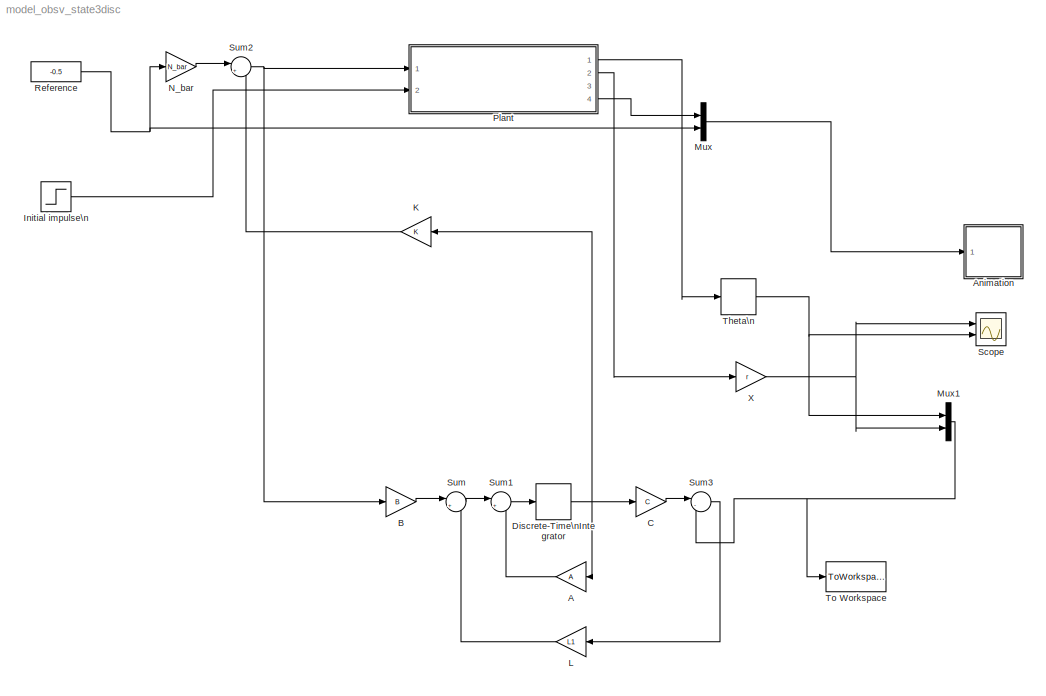
MODEL model_obsv_state3disc
KIND model
BLOCK [Gain] A
  Gain = A
  Multiplication = Matrix(K*u)
  OutDataTypeStr = Inherit: Inherit via internal rule
  ParamDataTypeStr = Inherit: Inherit via internal rule
  SID = 53
  SaturateOnIntegerOverflow = off
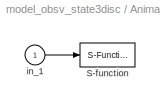
BLOCK [SubSystem] Animation
  Ports = [1]
  RequestExecContextInheritance = off
  SID = 22
  Variant = off
BLOCK [S-Function] Animation/S-function
  DeleteFcn = pendan([],[],[],'DeleteBlock');
  EnableBusSupport = off
  FunctionName = invpend_anim
  Parameters = RefBlock,L,r,Ts
  Ports = [1]
  SFunctionDeploymentMode = off
  SID = 24
BLOCK [Inport] Animation/in_1
  IconDisplay = Port number
  SID = 23
BLOCK [Gain] B
  Gain = B
  Multiplication = Matrix(K*u)
  OutDataTypeStr = Inherit: Inherit via internal rule
  ParamDataTypeStr = Inherit: Inherit via internal rule
  SID = 52
  SaturateOnIntegerOverflow = off
BLOCK [Gain] C
  Gain = C
  Multiplication = Matrix(K*u)
  OutDataTypeStr = Inherit: Inherit via internal rule
  ParamDataTypeStr = Inherit: Inherit via internal rule
  SID = 54
  SaturateOnIntegerOverflow = off
BLOCK [DiscreteIntegrator] Discrete-Time\nIntegrator
  ICPrevOutput = DiscIntNeverNeededParam
  ICPrevScaledInput = DiscIntNeverNeededParam
  InitialConditionSetting = State (most efficient)
  IntegratorMethod = Integration: Trapezoidal
  Ports = [1, 1]
  SID = 87
  SampleTime = 0.00344
BLOCK [Step] Initial impulse\n
  After = 0
  SID = 85
  SampleTime = 0
  Time = 6
BLOCK [Gain] K
  Gain = K
  Multiplication = Matrix(K*u)
  OutDataTypeStr = Inherit: Inherit via internal rule
  ParamDataTypeStr = Inherit: Inherit via internal rule
  SID = 42
  SaturateOnIntegerOverflow = off
BLOCK [Gain] L
  Gain = L1
  Multiplication = Matrix(K*u)
  OutDataTypeStr = Inherit: Inherit via internal rule
  ParamDataTypeStr = Inherit: Inherit via internal rule
  SID = 58
  SaturateOnIntegerOverflow = off
BLOCK [Mux] Mux
  DisplayOption = bar
  Inputs = 2
  Ports = [2, 1]
  SID = 26
BLOCK [Mux] Mux1
  DisplayOption = bar
  Inputs = 2
  Ports = [2, 1]
  SID = 72
BLOCK [Gain] N_bar
  Gain = N_bar
  Multiplication = Matrix(K*u)
  OutDataTypeStr = Inherit: Inherit via internal rule
  ParamDataTypeStr = Inherit: Inherit via internal rule
  SID = 79
  SaturateOnIntegerOverflow = off
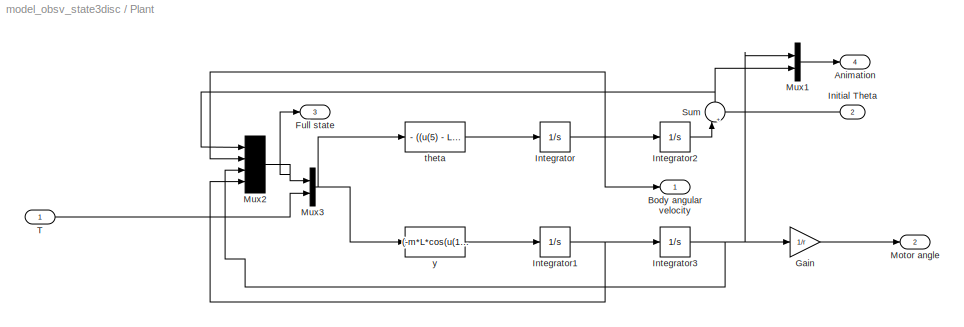
BLOCK [SubSystem] Plant
  Ports = [2, 4]
  RequestExecContextInheritance = off
  SID = 8
  Variant = off
BLOCK [Outport] Plant/Animation
  IconDisplay = Port number
  Port = 4
  SID = 14
BLOCK [Outport] Plant/Body angular velocity
  IconDisplay = Port number
  SID = 11
BLOCK [Outport] Plant/Full state
  IconDisplay = Port number
  Port = 3
  SID = 27
BLOCK [Gain] Plant/Gain
  Gain = 1/r
  OutDataTypeStr = Inherit: Inherit via internal rule
  ParamDataTypeStr = Inherit: Inherit via internal rule
  SID = 12
  SaturateOnIntegerOverflow = off
BLOCK [Inport] Plant/Initial Theta
  IconDisplay = Port number
  Port = 2
  SID = 44
BLOCK [Integrator] Plant/Integrator
  Ports = [1, 1]
  SID = 3
BLOCK [Integrator] Plant/Integrator1
  Ports = [1, 1]
  SID = 4
BLOCK [Integrator] Plant/Integrator2
  Ports = [1, 1]
  SID = 5
BLOCK [Integrator] Plant/Integrator3
  Ports = [1, 1]
  SID = 6
BLOCK [Outport] Plant/Motor angle
  IconDisplay = Port number
  Port = 2
  SID = 13
BLOCK [Mux] Plant/Mux1
  DisplayOption = bar
  Inputs = 2
  Ports = [2, 1]
  SID = 19
BLOCK [Mux] Plant/Mux2
  DisplayOption = bar
  Ports = [4, 1]
  SID = 28
BLOCK [Mux] Plant/Mux3
  DisplayOption = bar
  Inputs = 2
  Ports = [2, 1]
  SID = 29
BLOCK [Sum] Plant/Sum
  IconShape = round
  InputSameDT = off
  Inputs = |++
  OutDataTypeStr = Inherit: Inherit via internal rule
  Ports = [2, 1]
  SID = 16
  SaturateOnIntegerOverflow = off
BLOCK [Inport] Plant/T
  IconDisplay = Port number
  SID = 9
BLOCK [Fcn] Plant/theta
  Expr = - ((u(5) - L*g*m*sin(u(1)))*(J + m*r^2 + mw*r^2))/(L^2*m*(J + m*r^2 + mw*r^2 - m*r^2*cos(u(1))^2)) - (r^2*cos(u(1))*(u(5)/r + L*m*u(2)^2*sin(u(1))))/(L*(J + m*r^2 + mw*r^2 - m*r^2*cos(u(1))^2))
  SID = 1
BLOCK [Fcn] Plant/y
  Expr = (-m*L*cos(u(1))*(m*g*L*sin(u(1)) - u(5)) + m*L^2*(m*L*u(2)^2*sin(u(1))+u(5)/r))/(L^2*(m^2+m*mw+(m*J)/r^2- m^2*(cos(u(1)))^2))
  SID = 2
BLOCK [Constant] Reference
  SID = 25
  Value = -0.5
BLOCK [Scope] Scope
  NumInputPorts = 2
  Ports = [2]
  SID = 77
  ScopeSpecificationString = Simulink.scopes.TimeScopeBlockCfg('CurrentConfiguration', extmgr.ConfigurationSet(extmgr.Configuration('Core','General UI',true),extmgr.Configuration('Core','Source UI',true),extmgr.Configuration('Sources','WiredSimulink',true,'DataLoggingSaveFormat','StructureWithTime','DataLoggingDecimation','1','DataLoggingDecimateData',true),extmgr.Configuration('Visuals','Time Domain',true,'SerializedDisplays...<+2249ch>
BLOCK [Sum] Sum
  IconShape = round
  InputSameDT = off
  Inputs = |++
  OutDataTypeStr = Inherit: Inherit via internal rule
  Ports = [2, 1]
  SID = 55
  SaturateOnIntegerOverflow = off
BLOCK [Sum] Sum1
  IconShape = round
  InputSameDT = off
  Inputs = |++
  OutDataTypeStr = Inherit: Inherit via internal rule
  Ports = [2, 1]
  SID = 56
  SaturateOnIntegerOverflow = off
BLOCK [Sum] Sum2
  IconShape = round
  InputSameDT = off
  Inputs = |+-
  OutDataTypeStr = Inherit: Inherit via internal rule
  Ports = [2, 1]
  SID = 57
  SaturateOnIntegerOverflow = off
BLOCK [Sum] Sum3
  IconShape = round
  InputSameDT = off
  Inputs = |-+
  OutDataTypeStr = Inherit: Inherit via internal rule
  Ports = [2, 1]
  SID = 60
  SaturateOnIntegerOverflow = off
BLOCK [DiscreteIntegrator] Theta\n
  ICPrevOutput = DiscIntNeverNeededParam
  ICPrevScaledInput = DiscIntNeverNeededParam
  InitialConditionSetting = State (most efficient)
  IntegratorMethod = Integration: Trapezoidal
  Ports = [1, 1]
  SID = 86
  SampleTime = 0.00344
BLOCK [ToWorkspace] To Workspace
  FixptAsFi = on
  MaxDataPoints = inf
  Ports = [1]
  SID = 78
  SampleTime = -1
  Save2DSignal = 3-D array (concatenate along third dimension)
  SaveFormat = Timeseries
  VariableName = Y_hat
BLOCK [Gain] X
  Gain = r
  Multiplication = Matrix(K*u)
  OutDataTypeStr = Inherit: Inherit via internal rule
  ParamDataTypeStr = Inherit: Inherit via internal rule
  SID = 71
  SaturateOnIntegerOverflow = off
LINE A:1 -> Sum1:2
LINE Animation/in_1:1 -> Animation/S-function:1
LINE B:1 -> Sum:1
LINE C:1 -> Sum3:1
NET Discrete-Time\nIntegrator:1 -> A:1, C:1, K:1
LINE Initial impulse\n:1 -> Plant:2
LINE K:1 -> Sum2:2
LINE L:1 -> Sum:2
NET Mux1:1 -> Sum3:2, To Workspace:1
LINE Mux:1 -> Animation:1
LINE N_bar:1 -> Sum2:1
LINE Plant/Gain:1 -> Plant/Motor angle:1
LINE Plant/Initial Theta:1 -> Plant/Sum:2
NET Plant/Integrator1:1 -> Plant/Integrator3:1, Plant/Mux2:4
LINE Plant/Integrator2:1 -> Plant/Sum:1
NET Plant/Integrator3:1 -> Plant/Gain:1, Plant/Mux1:1, Plant/Mux2:3
NET Plant/Integrator:1 -> Plant/Body angular velocity:1, Plant/Integrator2:1, Plant/Mux2:2
LINE Plant/Mux1:1 -> Plant/Animation:1
NET Plant/Mux2:1 -> Plant/Full state:1, Plant/Mux3:1
NET Plant/Mux3:1 -> Plant/theta:1, Plant/y:1
NET Plant/Sum:1 -> Plant/Mux1:2, Plant/Mux2:1
LINE Plant/T:1 -> Plant/Mux3:2
LINE Plant/theta:1 -> Plant/Integrator:1
LINE Plant/y:1 -> Plant/Integrator1:1
LINE Plant:1 -> Theta\n:1
LINE Plant:2 -> X:1
LINE Plant:4 -> Mux:1
NET Reference:1 -> Mux:2, N_bar:1
LINE Sum1:1 -> Discrete-Time\nIntegrator:1
NET Sum2:1 -> B:1, Plant:1
LINE Sum3:1 -> L:1
LINE Sum:1 -> Sum1:1
NET Theta\n:1 -> Mux1:1, Scope:2
NET X:1 -> Mux1:2, Scope:1
note: NET lines group one-source signal fan-out (src -> all destinations, sorted); 1:1 wires keep LINE
